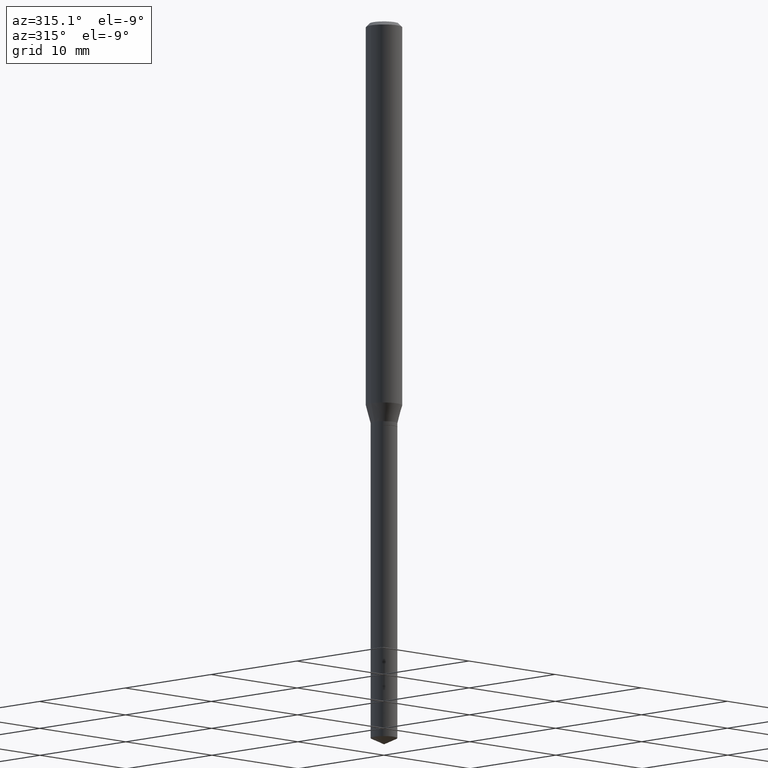
[diagram: clean part render]
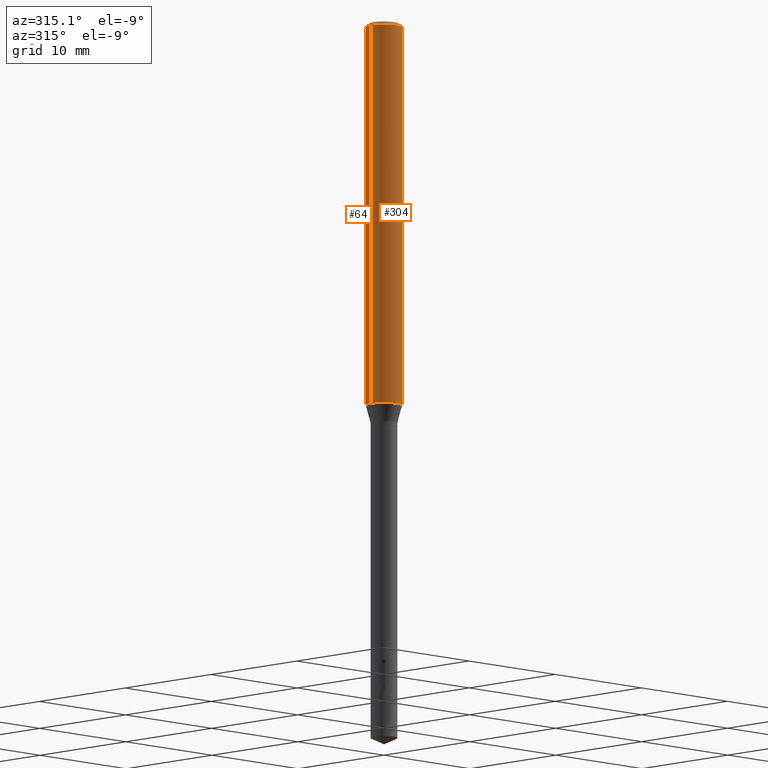
[diagram: same view with one multi-face feature highlighted, each face labeled with its STEP entity id]
A machine part, auxiliary view. The highlighted faces form ONE feature: a constant-radius fillet chain: 2 tangent blend faces with common blend radius 1.4999 mm. The faces share edges in the B-rep.
Their STEP definitions:
[1] entity #304 (Cylinder):
#4 = CARTESIAN_POINT ( 'NONE',  ( 0.05905000000000015098, -4.780257628167824527E-15, -1.251020199780789266 ) ) ;
#5 = VERTEX_POINT ( 'NONE', #366 ) ;
#6 = DIRECTION ( 'NONE',  ( 1.000000000000000000, -6.982962677686266711E-15, 4.876176775795936353E-29 ) ) ;
#7 = DIRECTION ( 'NONE',  ( 1.000000000000000000, -6.982962677686262766E-15, 0.000000000000000000 ) ) ;
#14 = EDGE_CURVE ( 'NONE', #57, #5, #363, .T. ) ;
#23 = CARTESIAN_POINT ( 'NONE',  ( -0.05905000000000015098, -3.948338196584109325E-15, -1.251020199780789266 ) ) ;
#26 = AXIS2_PLACEMENT_3D ( 'NONE', #132, #332, #244 ) ;
#35 = CYLINDRICAL_SURFACE ( 'NONE', #231, 0.05905000000000007465 ) ;
#57 = VERTEX_POINT ( 'NONE', #355 ) ;
#79 = DIRECTION ( 'NONE',  ( -2.445468806185136597E-29, 3.491481338843145583E-15, 1.000000000000000000 ) ) ;
#84 = EDGE_CURVE ( 'NONE', #103, #368, #369, .T. ) ;
#90 = CARTESIAN_POINT ( 'NONE',  ( -0.05905000000000007465, 4.195754854663396902E-16, -2.904631170795525395E-30 ) ) ;
#103 = VERTEX_POINT ( 'NONE', #23 ) ;
#114 = EDGE_LOOP ( 'NONE', ( #288, #419, #414, #267 ) ) ;
#117 = VECTOR ( 'NONE', #391, 39.37007874015748143 ) ;
#132 = CARTESIAN_POINT ( 'NONE',  ( 2.888098660104664642E-31, -4.123439461173780879E-17, -0.01181000000000007565 ) ) ;
#155 = FACE_OUTER_BOUND ( 'NONE', #114, .T. ) ;
#190 = LINE ( 'NONE', #309, #117 ) ;
#196 = CARTESIAN_POINT ( 'NONE',  ( 3.059330874471417775E-29, -4.367913682050449607E-15, -1.251020199780789266 ) ) ;
#227 = CARTESIAN_POINT ( 'NONE',  ( 0.000000000000000000, 0.000000000000000000, 0.000000000000000000 ) ) ;
#231 = AXIS2_PLACEMENT_3D ( 'NONE', #227, #79, #6 ) ;
#244 = DIRECTION ( 'NONE',  ( 1.000000000000000000, -6.982962677686266711E-15, 0.000000000000000000 ) ) ;
#266 = EDGE_CURVE ( 'NONE', #368, #5, #190, .T. ) ;
#267 = ORIENTED_EDGE ( 'NONE', *, *, #14, .F. ) ;
#288 = ORIENTED_EDGE ( 'NONE', *, *, #470, .F. ) ;
#304 = ADVANCED_FACE ( 'NONE', ( #155 ), #35, .T. ) ;
#306 = AXIS2_PLACEMENT_3D ( 'NONE', #196, #359, #7 ) ;
#309 = CARTESIAN_POINT ( 'NONE',  ( 0.05905000000000007465, -4.123439461173745750E-16, 2.879382386107504074E-30 ) ) ;
#327 = DIRECTION ( 'NONE',  ( -2.445468806185136877E-29, 3.491481338843145188E-15, 1.000000000000000000 ) ) ;
#332 = DIRECTION ( 'NONE',  ( -2.445468806185136597E-29, 3.491481338843145583E-15, 1.000000000000000000 ) ) ;
#355 = CARTESIAN_POINT ( 'NONE',  ( -0.05904999999999999832, -1.784998552864752992E-15, -0.01181000000000007565 ) ) ;
#359 = DIRECTION ( 'NONE',  ( -2.445468806185136597E-29, 3.491481338843145583E-15, 1.000000000000000000 ) ) ;
#362 = LINE ( 'NONE', #90, #370 ) ;
#363 = CIRCLE ( 'NONE', #26, 0.05904999999999999832 ) ;
#366 = CARTESIAN_POINT ( 'NONE',  ( 0.05904999999999999832, -4.535783407291118600E-16, -0.01181000000000007565 ) ) ;
#368 = VERTEX_POINT ( 'NONE', #4 ) ;
#369 = CIRCLE ( 'NONE', #306, 0.05905000000000015098 ) ;
#370 = VECTOR ( 'NONE', #327, 39.37007874015748143 ) ;
#391 = DIRECTION ( 'NONE',  ( -2.445468806185136877E-29, 3.491481338843145188E-15, 1.000000000000000000 ) ) ;
#414 = ORIENTED_EDGE ( 'NONE', *, *, #266, .T. ) ;
#419 = ORIENTED_EDGE ( 'NONE', *, *, #84, .T. ) ;
#470 = EDGE_CURVE ( 'NONE', #103, #57, #362, .T. ) ;
[2] entity #64 (Cylinder):
#4 = CARTESIAN_POINT ( 'NONE',  ( 0.05905000000000015098, -4.780257628167824527E-15, -1.251020199780789266 ) ) ;
#5 = VERTEX_POINT ( 'NONE', #366 ) ;
#23 = CARTESIAN_POINT ( 'NONE',  ( -0.05905000000000015098, -3.948338196584109325E-15, -1.251020199780789266 ) ) ;
#25 = EDGE_CURVE ( 'NONE', #5, #57, #356, .T. ) ;
#36 = AXIS2_PLACEMENT_3D ( 'NONE', #441, #303, #108 ) ;
#40 = ORIENTED_EDGE ( 'NONE', *, *, #25, .F. ) ;
#51 = AXIS2_PLACEMENT_3D ( 'NONE', #251, #130, #407 ) ;
#57 = VERTEX_POINT ( 'NONE', #355 ) ;
#64 = ADVANCED_FACE ( 'NONE', ( #278 ), #158, .T. ) ;
#90 = CARTESIAN_POINT ( 'NONE',  ( -0.05905000000000007465, 4.195754854663396902E-16, -2.904631170795525395E-30 ) ) ;
#92 = DIRECTION ( 'NONE',  ( 1.000000000000000000, -6.982962677686266711E-15, 4.876176775795936353E-29 ) ) ;
#103 = VERTEX_POINT ( 'NONE', #23 ) ;
#108 = DIRECTION ( 'NONE',  ( 1.000000000000000000, -6.982962677686262766E-15, 0.000000000000000000 ) ) ;
#117 = VECTOR ( 'NONE', #391, 39.37007874015748143 ) ;
#130 = DIRECTION ( 'NONE',  ( -2.445468806185136597E-29, 3.491481338843145583E-15, 1.000000000000000000 ) ) ;
#149 = EDGE_LOOP ( 'NONE', ( #183, #460, #40, #346 ) ) ;
#158 = CYLINDRICAL_SURFACE ( 'NONE', #229, 0.05905000000000007465 ) ;
#179 = CIRCLE ( 'NONE', #36, 0.05905000000000015098 ) ;
#183 = ORIENTED_EDGE ( 'NONE', *, *, #203, .T. ) ;
#190 = LINE ( 'NONE', #309, #117 ) ;
#203 = EDGE_CURVE ( 'NONE', #368, #103, #179, .T. ) ;
#229 = AXIS2_PLACEMENT_3D ( 'NONE', #319, #463, #92 ) ;
#251 = CARTESIAN_POINT ( 'NONE',  ( 2.888098660104664642E-31, -4.123439461173780879E-17, -0.01181000000000007565 ) ) ;
#266 = EDGE_CURVE ( 'NONE', #368, #5, #190, .T. ) ;
#278 = FACE_OUTER_BOUND ( 'NONE', #149, .T. ) ;
#303 = DIRECTION ( 'NONE',  ( -2.445468806185136597E-29, 3.491481338843145583E-15, 1.000000000000000000 ) ) ;
#309 = CARTESIAN_POINT ( 'NONE',  ( 0.05905000000000007465, -4.123439461173745750E-16, 2.879382386107504074E-30 ) ) ;
#319 = CARTESIAN_POINT ( 'NONE',  ( 0.000000000000000000, 0.000000000000000000, 0.000000000000000000 ) ) ;
#327 = DIRECTION ( 'NONE',  ( -2.445468806185136877E-29, 3.491481338843145188E-15, 1.000000000000000000 ) ) ;
#346 = ORIENTED_EDGE ( 'NONE', *, *, #266, .F. ) ;
#355 = CARTESIAN_POINT ( 'NONE',  ( -0.05904999999999999832, -1.784998552864752992E-15, -0.01181000000000007565 ) ) ;
#356 = CIRCLE ( 'NONE', #51, 0.05904999999999999832 ) ;
#362 = LINE ( 'NONE', #90, #370 ) ;
#366 = CARTESIAN_POINT ( 'NONE',  ( 0.05904999999999999832, -4.535783407291118600E-16, -0.01181000000000007565 ) ) ;
#368 = VERTEX_POINT ( 'NONE', #4 ) ;
#370 = VECTOR ( 'NONE', #327, 39.37007874015748143 ) ;
#391 = DIRECTION ( 'NONE',  ( -2.445468806185136877E-29, 3.491481338843145188E-15, 1.000000000000000000 ) ) ;
#407 = DIRECTION ( 'NONE',  ( 1.000000000000000000, -6.982962677686266711E-15, 0.000000000000000000 ) ) ;
#441 = CARTESIAN_POINT ( 'NONE',  ( 3.059330874471417775E-29, -4.367913682050449607E-15, -1.251020199780789266 ) ) ;
#460 = ORIENTED_EDGE ( 'NONE', *, *, #470, .T. ) ;
#463 = DIRECTION ( 'NONE',  ( -2.445468806185136597E-29, 3.491481338843145583E-15, 1.000000000000000000 ) ) ;
#470 = EDGE_CURVE ( 'NONE', #103, #57, #362, .T. ) ;